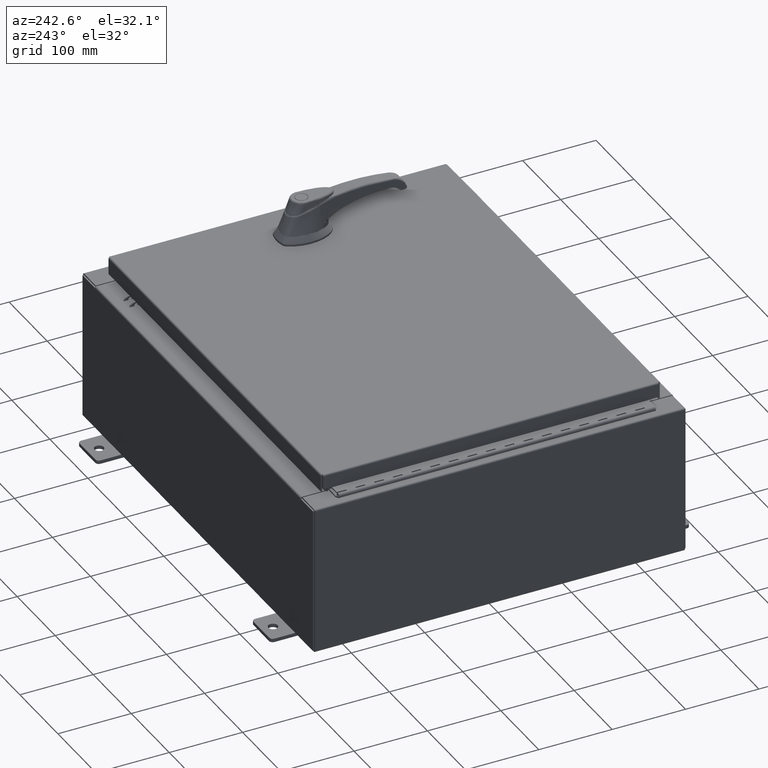
[diagram: clean part render]
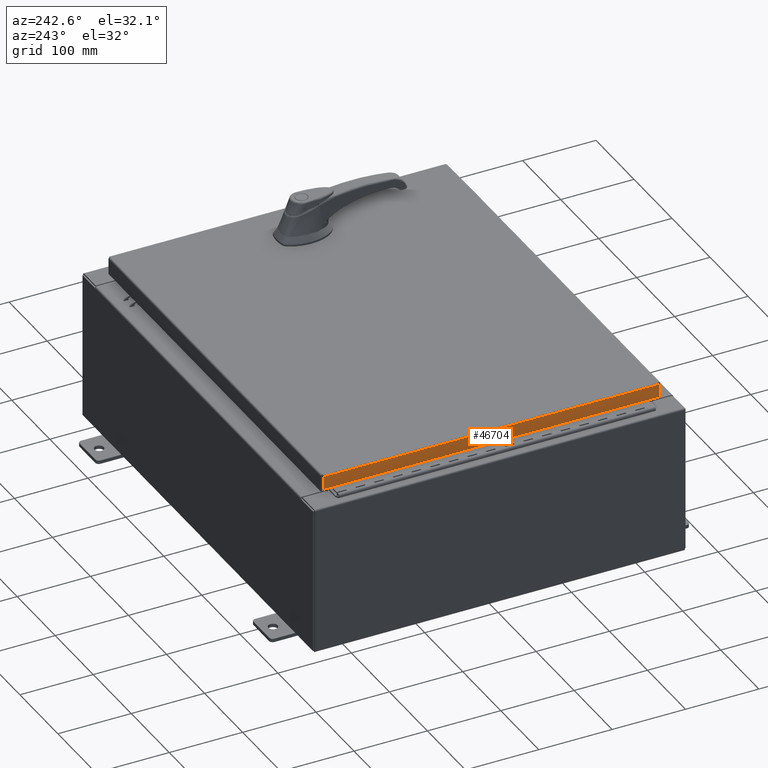
[diagram: same view with one face highlighted and labeled with its STEP entity id]
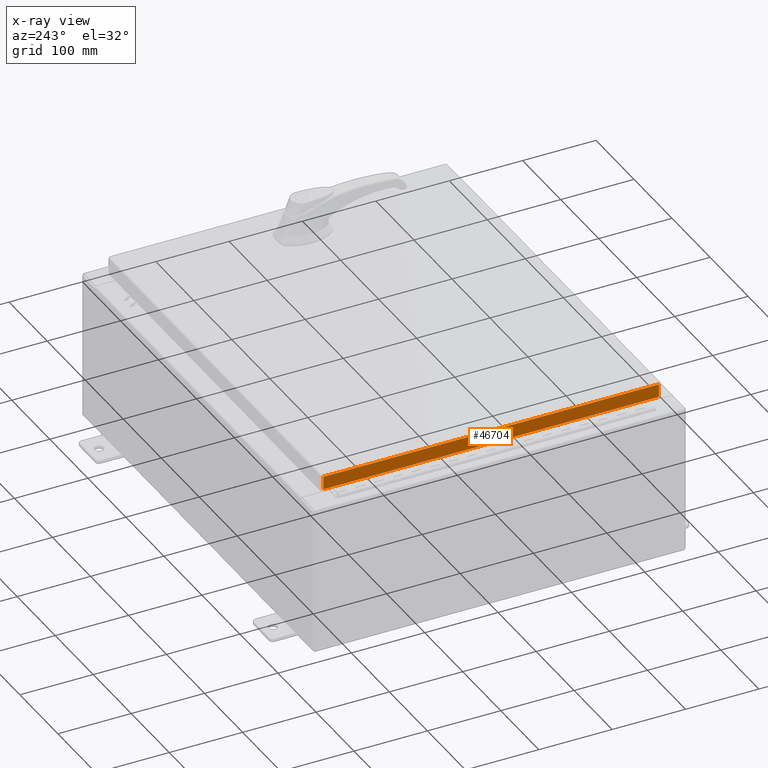
[diagram: x-ray of the same camera — body ghosted, the highlighted face saturated]
A machine part, auxiliary view. The second image highlights one B-rep face of the part: STEP entity #46704.
The next image is the same camera in x-ray: the body ghosted, the highlighted face saturated — about 0% of this face is hidden behind the body in this view.
In plain terms, the highlighted planar face has unit normal (1, 0, -0).
Its self-contained STEP definition (entity closure, byte-faithful):
#4900 = DIRECTION ( 'NONE',  ( 4.379057701015054300E-047, 1.000000000000000000, 1.201604571657912400E-016 ) ) ;
#5259 = EDGE_CURVE ( 'NONE', #61902, #28838, #80800, .T. ) ;
#5377 = FACE_OUTER_BOUND ( 'NONE', #99995, .T. ) ;
#6362 = CARTESIAN_POINT ( 'NONE',  ( -11.07799999999999900, -9.093999999999999400, -0.08770000000000004200 ) ) ;
#12713 = AXIS2_PLACEMENT_3D ( 'NONE', #63962, #21969, #80886 ) ;
#13497 = PLANE ( 'NONE',  #12713 ) ;
#14872 = DIRECTION ( 'NONE',  ( 3.645815397208356400E-031, -1.000000000000000000, -1.074717912135910100E-045 ) ) ;
#20730 = ORIENTED_EDGE ( 'NONE', *, *, #5259, .T. ) ;
#21969 = DIRECTION ( 'NONE',  ( 1.000000000000000000, 3.645815397208356400E-031, -3.034122441942816500E-015 ) ) ;
#22756 = ORIENTED_EDGE ( 'NONE', *, *, #70675, .F. ) ;
#27056 = CARTESIAN_POINT ( 'NONE',  ( -11.07799999999999900, -9.005157864376268900, -0.08770000000000007000 ) ) ;
#27691 = LINE ( 'NONE', #6362, #92129 ) ;
#28838 = VERTEX_POINT ( 'NONE', #67420 ) ;
#31385 = VECTOR ( 'NONE', #77048, 39.37007874015748100 ) ;
#33761 = DIRECTION ( 'NONE',  ( -3.034122441942816500E-015, 6.982962677686267500E-015, -1.000000000000000000 ) ) ;
#34354 = CARTESIAN_POINT ( 'NONE',  ( -11.07800000000000300, -9.005157864376261800, -0.7949999999999996000 ) ) ;
#38095 = VERTEX_POINT ( 'NONE', #27056 ) ;
#45890 = LINE ( 'NONE', #68598, #31385 ) ;
#46704 = ADVANCED_FACE ( 'NONE', ( #5377 ), #13497, .F. ) ;
#48405 = EDGE_CURVE ( 'NONE', #61902, #38095, #27691, .T. ) ;
#60298 = LINE ( 'NONE', #89222, #105172 ) ;
#61902 = VERTEX_POINT ( 'NONE', #108004 ) ;
#63219 = EDGE_CURVE ( 'NONE', #88717, #28838, #60298, .T. ) ;
#63962 = CARTESIAN_POINT ( 'NONE',  ( -11.07799999999999900, -4.038834297027417500E-030, 3.387282206785410600E-014 ) ) ;
#67420 = CARTESIAN_POINT ( 'NONE',  ( -11.07800000000000300, 9.005157864376274200, -0.7949999999999974900 ) ) ;
#68598 = CARTESIAN_POINT ( 'NONE',  ( -11.07799999999999900, -9.005157864376267100, -0.07469999999999976700 ) ) ;
#70675 = EDGE_CURVE ( 'NONE', #38095, #88717, #45890, .T. ) ;
#77048 = DIRECTION ( 'NONE',  ( -3.034122441942816500E-015, 6.982962677686267500E-015, -1.000000000000000000 ) ) ;
#80800 = LINE ( 'NONE', #109280, #95335 ) ;
#80886 = DIRECTION ( 'NONE',  ( -3.034122441942816500E-015, 0.0000000000000000000, -1.000000000000000000 ) ) ;
#88717 = VERTEX_POINT ( 'NONE', #34354 ) ;
#89222 = CARTESIAN_POINT ( 'NONE',  ( -11.07800000000000300, -9.093999999999999400, -0.7949999999999997100 ) ) ;
#92129 = VECTOR ( 'NONE', #14872, 39.37007874015748100 ) ;
#95114 = ORIENTED_EDGE ( 'NONE', *, *, #63219, .F. ) ;
#95335 = VECTOR ( 'NONE', #33761, 39.37007874015748100 ) ;
#99995 = EDGE_LOOP ( 'NONE', ( #102588, #20730, #95114, #22756 ) ) ;
#102588 = ORIENTED_EDGE ( 'NONE', *, *, #48405, .F. ) ;
#105172 = VECTOR ( 'NONE', #4900, 39.37007874015748100 ) ;
#108004 = CARTESIAN_POINT ( 'NONE',  ( -11.07799999999999900, 9.005157864376270600, -0.08770000000000004200 ) ) ;
#109280 = CARTESIAN_POINT ( 'NONE',  ( -11.07799999999999900, 9.005157864376268900, 9.675550334146656300E-014 ) ) ;